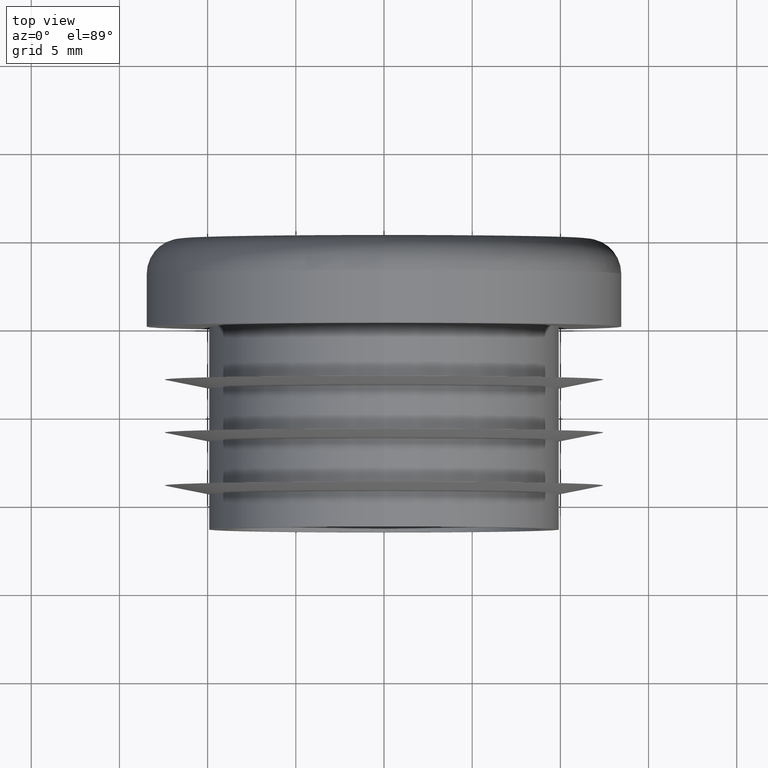
[diagram: clean part render]
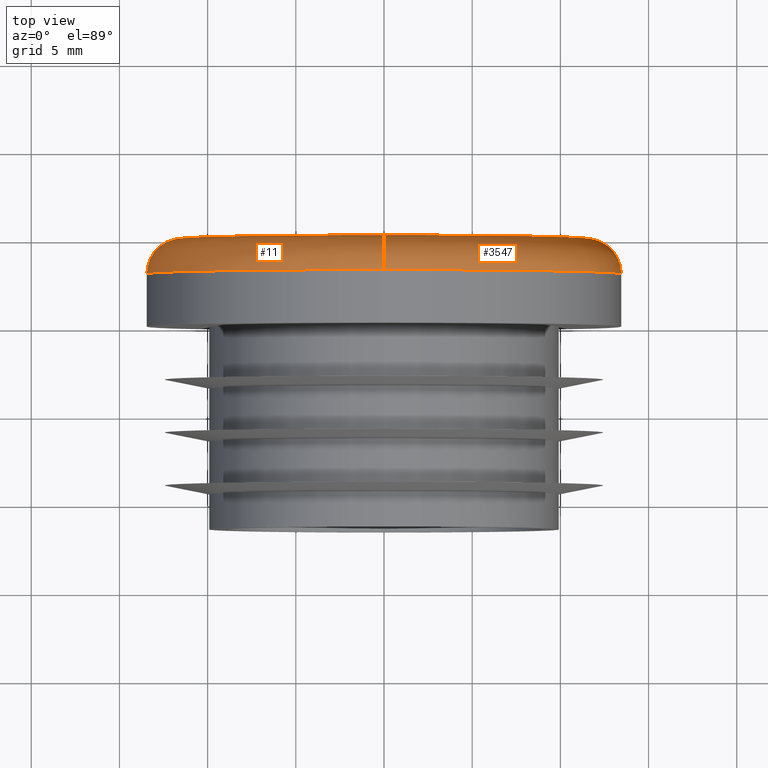
[diagram: same view with one multi-face feature highlighted, each face labeled with its STEP entity id]
A machine part, top view. The highlighted faces form ONE feature: a constant-radius fillet chain: 2 tangent blend faces with common blend radius 2 mm. The faces share edges in the B-rep.
Their STEP definitions:
[1] entity #11 (Torus):
#11 = ADVANCED_FACE ( 'NONE', ( #393 ), #3807, .T. ) ;
#316 = CIRCLE ( 'NONE', #658, 2.000000000000000000 ) ;
#357 = ORIENTED_EDGE ( 'NONE', *, *, #2563, .F. ) ;
#393 = FACE_OUTER_BOUND ( 'NONE', #3715, .T. ) ;
#658 = AXIS2_PLACEMENT_3D ( 'NONE', #5308, #1251, #5939 ) ;
#1226 = AXIS2_PLACEMENT_3D ( 'NONE', #6347, #2433, #6924 ) ;
#1251 = DIRECTION ( 'NONE',  ( 1.000000000000000000, -0.0000000000000000000, 1.224646799147353200E-016 ) ) ;
#1896 = CARTESIAN_POINT ( 'NONE',  ( 0.0000000000000000000, 5.000000000000000000, 11.44999999999999900 ) ) ;
#2181 = CARTESIAN_POINT ( 'NONE',  ( 0.0000000000000000000, 3.000000000000000000, 0.0000000000000000000 ) ) ;
#2369 = CIRCLE ( 'NONE', #1226, 11.44999999999999900 ) ;
#2421 = VERTEX_POINT ( 'NONE', #8231 ) ;
#2433 = DIRECTION ( 'NONE',  ( 0.0000000000000000000, 1.000000000000000000, 0.0000000000000000000 ) ) ;
#2563 = EDGE_CURVE ( 'NONE', #5140, #6059, #2369, .T. ) ;
#2705 = AXIS2_PLACEMENT_3D ( 'NONE', #2181, #6727, #2877 ) ;
#2735 = AXIS2_PLACEMENT_3D ( 'NONE', #3120, #7528, #3801 ) ;
#2877 = DIRECTION ( 'NONE',  ( 0.0000000000000000000, 0.0000000000000000000, 1.000000000000000000 ) ) ;
#2939 = CARTESIAN_POINT ( 'NONE',  ( 1.647149944853190000E-015, 3.000000000000000000, 13.44999999999999900 ) ) ;
#3120 = CARTESIAN_POINT ( 'NONE',  ( 0.0000000000000000000, 3.000000000000000000, 11.44999999999999900 ) ) ;
#3438 = ORIENTED_EDGE ( 'NONE', *, *, #7919, .T. ) ;
#3601 = CIRCLE ( 'NONE', #2735, 2.000000000000000000 ) ;
#3715 = EDGE_LOOP ( 'NONE', ( #7972, #4227, #3438, #357 ) ) ;
#3801 = DIRECTION ( 'NONE',  ( 0.0000000000000000000, 0.0000000000000000000, 1.000000000000000000 ) ) ;
#3807 = TOROIDAL_SURFACE ( 'NONE', #4811, 11.44999999999999900, 2.000000000000000000 ) ;
#4212 = EDGE_CURVE ( 'NONE', #5822, #2421, #6566, .T. ) ;
#4227 = ORIENTED_EDGE ( 'NONE', *, *, #4212, .F. ) ;
#4811 = AXIS2_PLACEMENT_3D ( 'NONE', #5589, #5575, #5647 ) ;
#5140 = VERTEX_POINT ( 'NONE', #7111 ) ;
#5308 = CARTESIAN_POINT ( 'NONE',  ( 1.402220585023719500E-015, 3.000000000000000000, -11.44999999999999900 ) ) ;
#5575 = DIRECTION ( 'NONE',  ( 0.0000000000000000000, 1.000000000000000000, 0.0000000000000000000 ) ) ;
#5589 = CARTESIAN_POINT ( 'NONE',  ( 0.0000000000000000000, 3.000000000000000000, 0.0000000000000000000 ) ) ;
#5647 = DIRECTION ( 'NONE',  ( 0.0000000000000000000, 0.0000000000000000000, 1.000000000000000000 ) ) ;
#5822 = VERTEX_POINT ( 'NONE', #2939 ) ;
#5939 = DIRECTION ( 'NONE',  ( 1.224646799147353500E-016, 0.0000000000000000000, -1.000000000000000000 ) ) ;
#6059 = VERTEX_POINT ( 'NONE', #1896 ) ;
#6092 = EDGE_CURVE ( 'NONE', #2421, #5140, #316, .T. ) ;
#6347 = CARTESIAN_POINT ( 'NONE',  ( 0.0000000000000000000, 5.000000000000000000, 0.0000000000000000000 ) ) ;
#6566 = CIRCLE ( 'NONE', #2705, 13.44999999999999900 ) ;
#6727 = DIRECTION ( 'NONE',  ( -0.0000000000000000000, -1.000000000000000000, -0.0000000000000000000 ) ) ;
#6924 = DIRECTION ( 'NONE',  ( 0.0000000000000000000, 0.0000000000000000000, 1.000000000000000000 ) ) ;
#7111 = CARTESIAN_POINT ( 'NONE',  ( 1.524685264938454800E-015, 5.000000000000000000, -11.44999999999999900 ) ) ;
#7528 = DIRECTION ( 'NONE',  ( -1.000000000000000000, 0.0000000000000000000, 0.0000000000000000000 ) ) ;
#7919 = EDGE_CURVE ( 'NONE', #5822, #6059, #3601, .T. ) ;
#7972 = ORIENTED_EDGE ( 'NONE', *, *, #6092, .F. ) ;
#8231 = CARTESIAN_POINT ( 'NONE',  ( 0.0000000000000000000, 3.000000000000000000, -13.44999999999999900 ) ) ;
[2] entity #3547 (Torus):
#316 = CIRCLE ( 'NONE', #658, 2.000000000000000000 ) ;
#595 = EDGE_LOOP ( 'NONE', ( #3652, #7458, #7787, #7166 ) ) ;
#658 = AXIS2_PLACEMENT_3D ( 'NONE', #5308, #1251, #5939 ) ;
#1025 = AXIS2_PLACEMENT_3D ( 'NONE', #5655, #1594, #2289 ) ;
#1251 = DIRECTION ( 'NONE',  ( 1.000000000000000000, -0.0000000000000000000, 1.224646799147353200E-016 ) ) ;
#1464 = DIRECTION ( 'NONE',  ( 0.0000000000000000000, 1.000000000000000000, 0.0000000000000000000 ) ) ;
#1594 = DIRECTION ( 'NONE',  ( 0.0000000000000000000, 1.000000000000000000, 0.0000000000000000000 ) ) ;
#1896 = CARTESIAN_POINT ( 'NONE',  ( 0.0000000000000000000, 5.000000000000000000, 11.44999999999999900 ) ) ;
#2289 = DIRECTION ( 'NONE',  ( 0.0000000000000000000, 0.0000000000000000000, 1.000000000000000000 ) ) ;
#2421 = VERTEX_POINT ( 'NONE', #8231 ) ;
#2735 = AXIS2_PLACEMENT_3D ( 'NONE', #3120, #7528, #3801 ) ;
#2834 = CIRCLE ( 'NONE', #6350, 13.44999999999999900 ) ;
#2914 = EDGE_CURVE ( 'NONE', #6059, #5140, #7557, .T. ) ;
#2939 = CARTESIAN_POINT ( 'NONE',  ( 1.647149944853190000E-015, 3.000000000000000000, 13.44999999999999900 ) ) ;
#2971 = CARTESIAN_POINT ( 'NONE',  ( 0.0000000000000000000, 3.000000000000000000, 0.0000000000000000000 ) ) ;
#3120 = CARTESIAN_POINT ( 'NONE',  ( 0.0000000000000000000, 3.000000000000000000, 11.44999999999999900 ) ) ;
#3329 = FACE_OUTER_BOUND ( 'NONE', #595, .T. ) ;
#3547 = ADVANCED_FACE ( 'NONE', ( #3329 ), #8100, .T. ) ;
#3601 = CIRCLE ( 'NONE', #2735, 2.000000000000000000 ) ;
#3651 = DIRECTION ( 'NONE',  ( 0.0000000000000000000, 0.0000000000000000000, 1.000000000000000000 ) ) ;
#3652 = ORIENTED_EDGE ( 'NONE', *, *, #3978, .F. ) ;
#3801 = DIRECTION ( 'NONE',  ( 0.0000000000000000000, 0.0000000000000000000, 1.000000000000000000 ) ) ;
#3978 = EDGE_CURVE ( 'NONE', #2421, #5822, #2834, .T. ) ;
#5140 = VERTEX_POINT ( 'NONE', #7111 ) ;
#5308 = CARTESIAN_POINT ( 'NONE',  ( 1.402220585023719500E-015, 3.000000000000000000, -11.44999999999999900 ) ) ;
#5533 = CARTESIAN_POINT ( 'NONE',  ( 0.0000000000000000000, 5.000000000000000000, 0.0000000000000000000 ) ) ;
#5655 = CARTESIAN_POINT ( 'NONE',  ( 0.0000000000000000000, 3.000000000000000000, 0.0000000000000000000 ) ) ;
#5822 = VERTEX_POINT ( 'NONE', #2939 ) ;
#5939 = DIRECTION ( 'NONE',  ( 1.224646799147353500E-016, 0.0000000000000000000, -1.000000000000000000 ) ) ;
#6059 = VERTEX_POINT ( 'NONE', #1896 ) ;
#6092 = EDGE_CURVE ( 'NONE', #2421, #5140, #316, .T. ) ;
#6123 = DIRECTION ( 'NONE',  ( 0.0000000000000000000, 0.0000000000000000000, 1.000000000000000000 ) ) ;
#6252 = AXIS2_PLACEMENT_3D ( 'NONE', #5533, #1464, #6123 ) ;
#6350 = AXIS2_PLACEMENT_3D ( 'NONE', #2971, #7392, #3651 ) ;
#7111 = CARTESIAN_POINT ( 'NONE',  ( 1.524685264938454800E-015, 5.000000000000000000, -11.44999999999999900 ) ) ;
#7166 = ORIENTED_EDGE ( 'NONE', *, *, #7919, .F. ) ;
#7392 = DIRECTION ( 'NONE',  ( -0.0000000000000000000, -1.000000000000000000, -0.0000000000000000000 ) ) ;
#7458 = ORIENTED_EDGE ( 'NONE', *, *, #6092, .T. ) ;
#7528 = DIRECTION ( 'NONE',  ( -1.000000000000000000, 0.0000000000000000000, 0.0000000000000000000 ) ) ;
#7557 = CIRCLE ( 'NONE', #6252, 11.44999999999999900 ) ;
#7787 = ORIENTED_EDGE ( 'NONE', *, *, #2914, .F. ) ;
#7919 = EDGE_CURVE ( 'NONE', #5822, #6059, #3601, .T. ) ;
#8100 = TOROIDAL_SURFACE ( 'NONE', #1025, 11.44999999999999900, 2.000000000000000000 ) ;
#8231 = CARTESIAN_POINT ( 'NONE',  ( 0.0000000000000000000, 3.000000000000000000, -13.44999999999999900 ) ) ;